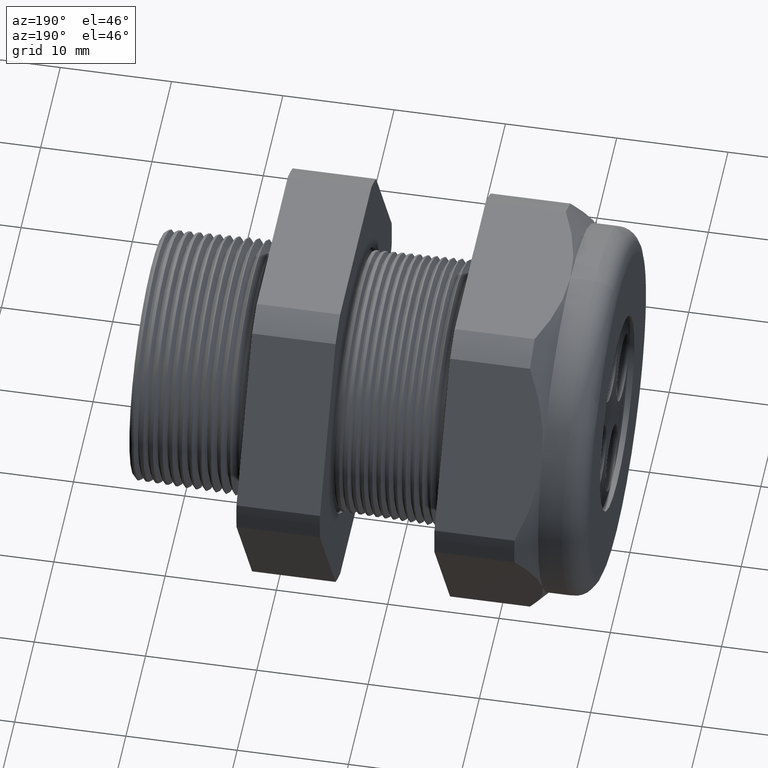
[diagram: clean part render]
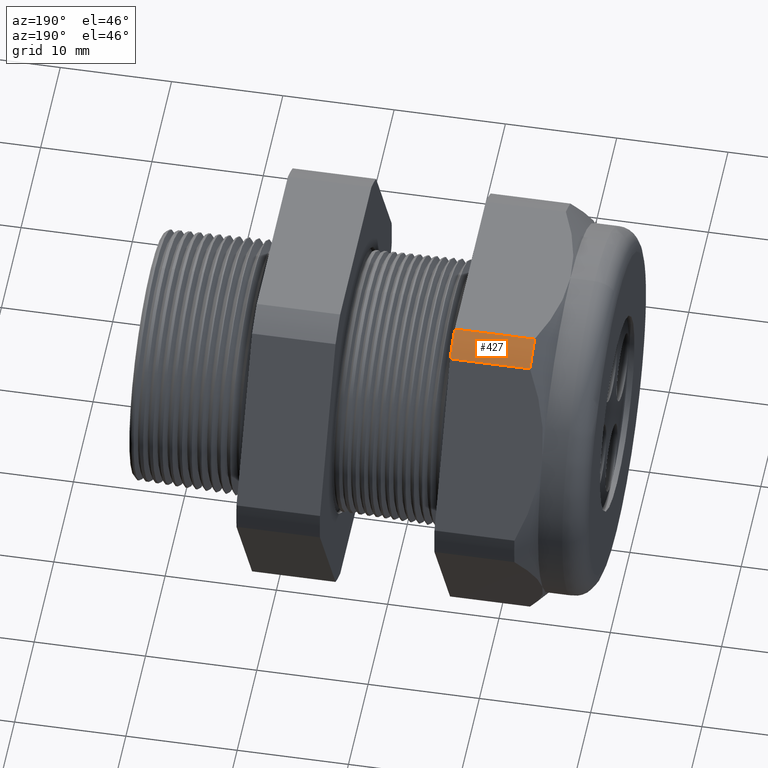
[diagram: same view with one face highlighted and labeled with its STEP entity id]
A machine part, auxiliary view. The second image highlights one B-rep face of the part: STEP entity #427.
In plain terms, the highlighted cylindrical surface (partial cylindrical patch) has radius 18.3261 mm, axis along (-1, 0, 0).
Its self-contained STEP definition (entity closure, byte-faithful):
#346 = EDGE_LOOP ( 'NONE', ( #347, #351, #407, #408 ) ) ;
#347 = ORIENTED_EDGE ( 'NONE', *, *, #348, .T. ) ;
#348 = EDGE_CURVE ( 'NONE', #349, #350, #1819, .T. ) ;
#349 = VERTEX_POINT ( 'NONE', #1815 ) ;
#350 = VERTEX_POINT ( 'NONE', #1814 ) ;
#351 = ORIENTED_EDGE ( 'NONE', *, *, #352, .T. ) ;
#352 = EDGE_CURVE ( 'NONE', #350, #364, #1813, .T. ) ;
#362 = EDGE_CURVE ( 'NONE', #363, #364, #1853, .T. ) ;
#363 = VERTEX_POINT ( 'NONE', #1849 ) ;
#364 = VERTEX_POINT ( 'NONE', #1848 ) ;
#407 = ORIENTED_EDGE ( 'NONE', *, *, #362, .F. ) ;
#408 = ORIENTED_EDGE ( 'NONE', *, *, #409, .F. ) ;
#409 = EDGE_CURVE ( 'NONE', #349, #363, #1941, .T. ) ;
#427 = ADVANCED_FACE ( 'NONE', ( #2000 ), #1999, .T. ) ;
#1809 = DIRECTION ( 'NONE',  ( 0.0000000000000000000, 0.0000000000000000000, -1.000000000000000000 ) ) ;
#1810 = DIRECTION ( 'NONE',  ( 1.000000000000000000, 0.0000000000000000000, 0.0000000000000000000 ) ) ;
#1811 = CARTESIAN_POINT ( 'NONE',  ( -1.293145669291338600, 0.0000000000000000000, 0.0000000000000000000 ) ) ;
#1812 = AXIS2_PLACEMENT_3D ( 'NONE', #1811, #1810, #1809 ) ;
#1813 = CIRCLE ( 'NONE', #1812, 0.7215000000000000300 ) ;
#1814 = CARTESIAN_POINT ( 'NONE',  ( -1.293145669291338600, 0.4063420493440890200, 0.5961949252843787800 ) ) ;
#1815 = CARTESIAN_POINT ( 'NONE',  ( -1.010314960629921100, 0.4063420493440890700, 0.5961949252843787800 ) ) ;
#1816 = DIRECTION ( 'NONE',  ( -1.000000000000000000, 0.0000000000000000000, 0.0000000000000000000 ) ) ;
#1817 = VECTOR ( 'NONE', #1816, 39.37007874015748100 ) ;
#1818 = CARTESIAN_POINT ( 'NONE',  ( 0.1200000000000000900, 0.4063420493440890700, 0.5961949252843787800 ) ) ;
#1819 = LINE ( 'NONE', #1818, #1817 ) ;
#1848 = CARTESIAN_POINT ( 'NONE',  ( -1.293145669291338600, 0.3131489262315937900, 0.6499999999999999100 ) ) ;
#1849 = CARTESIAN_POINT ( 'NONE',  ( -1.010314960629921100, 0.3131489262315937900, 0.6499999999999999100 ) ) ;
#1850 = DIRECTION ( 'NONE',  ( -1.000000000000000000, 0.0000000000000000000, 0.0000000000000000000 ) ) ;
#1851 = VECTOR ( 'NONE', #1850, 39.37007874015748100 ) ;
#1852 = CARTESIAN_POINT ( 'NONE',  ( 0.1200000000000000900, 0.3131489262315937900, 0.6499999999999999100 ) ) ;
#1853 = LINE ( 'NONE', #1852, #1851 ) ;
#1937 = DIRECTION ( 'NONE',  ( 0.0000000000000000000, 0.0000000000000000000, -1.000000000000000000 ) ) ;
#1938 = DIRECTION ( 'NONE',  ( 1.000000000000000000, 0.0000000000000000000, 0.0000000000000000000 ) ) ;
#1939 = CARTESIAN_POINT ( 'NONE',  ( -1.010314960629921100, 0.0000000000000000000, 0.0000000000000000000 ) ) ;
#1940 = AXIS2_PLACEMENT_3D ( 'NONE', #1939, #1938, #1937 ) ;
#1941 = CIRCLE ( 'NONE', #1940, 0.7215000000000000300 ) ;
#1994 = DIRECTION ( 'NONE',  ( 0.0000000000000000000, 0.0000000000000000000, 1.000000000000000000 ) ) ;
#1995 = DIRECTION ( 'NONE',  ( -1.000000000000000000, 0.0000000000000000000, 0.0000000000000000000 ) ) ;
#1996 = CARTESIAN_POINT ( 'NONE',  ( 0.1200000000000000900, 0.0000000000000000000, 0.0000000000000000000 ) ) ;
#1997 = AXIS2_PLACEMENT_3D ( 'NONE', #1996, #1995, #1994 ) ;
#1999 = CYLINDRICAL_SURFACE ( 'NONE', #1997, 0.7215000000000000300 ) ;
#2000 = FACE_OUTER_BOUND ( 'NONE', #346, .T. ) ;